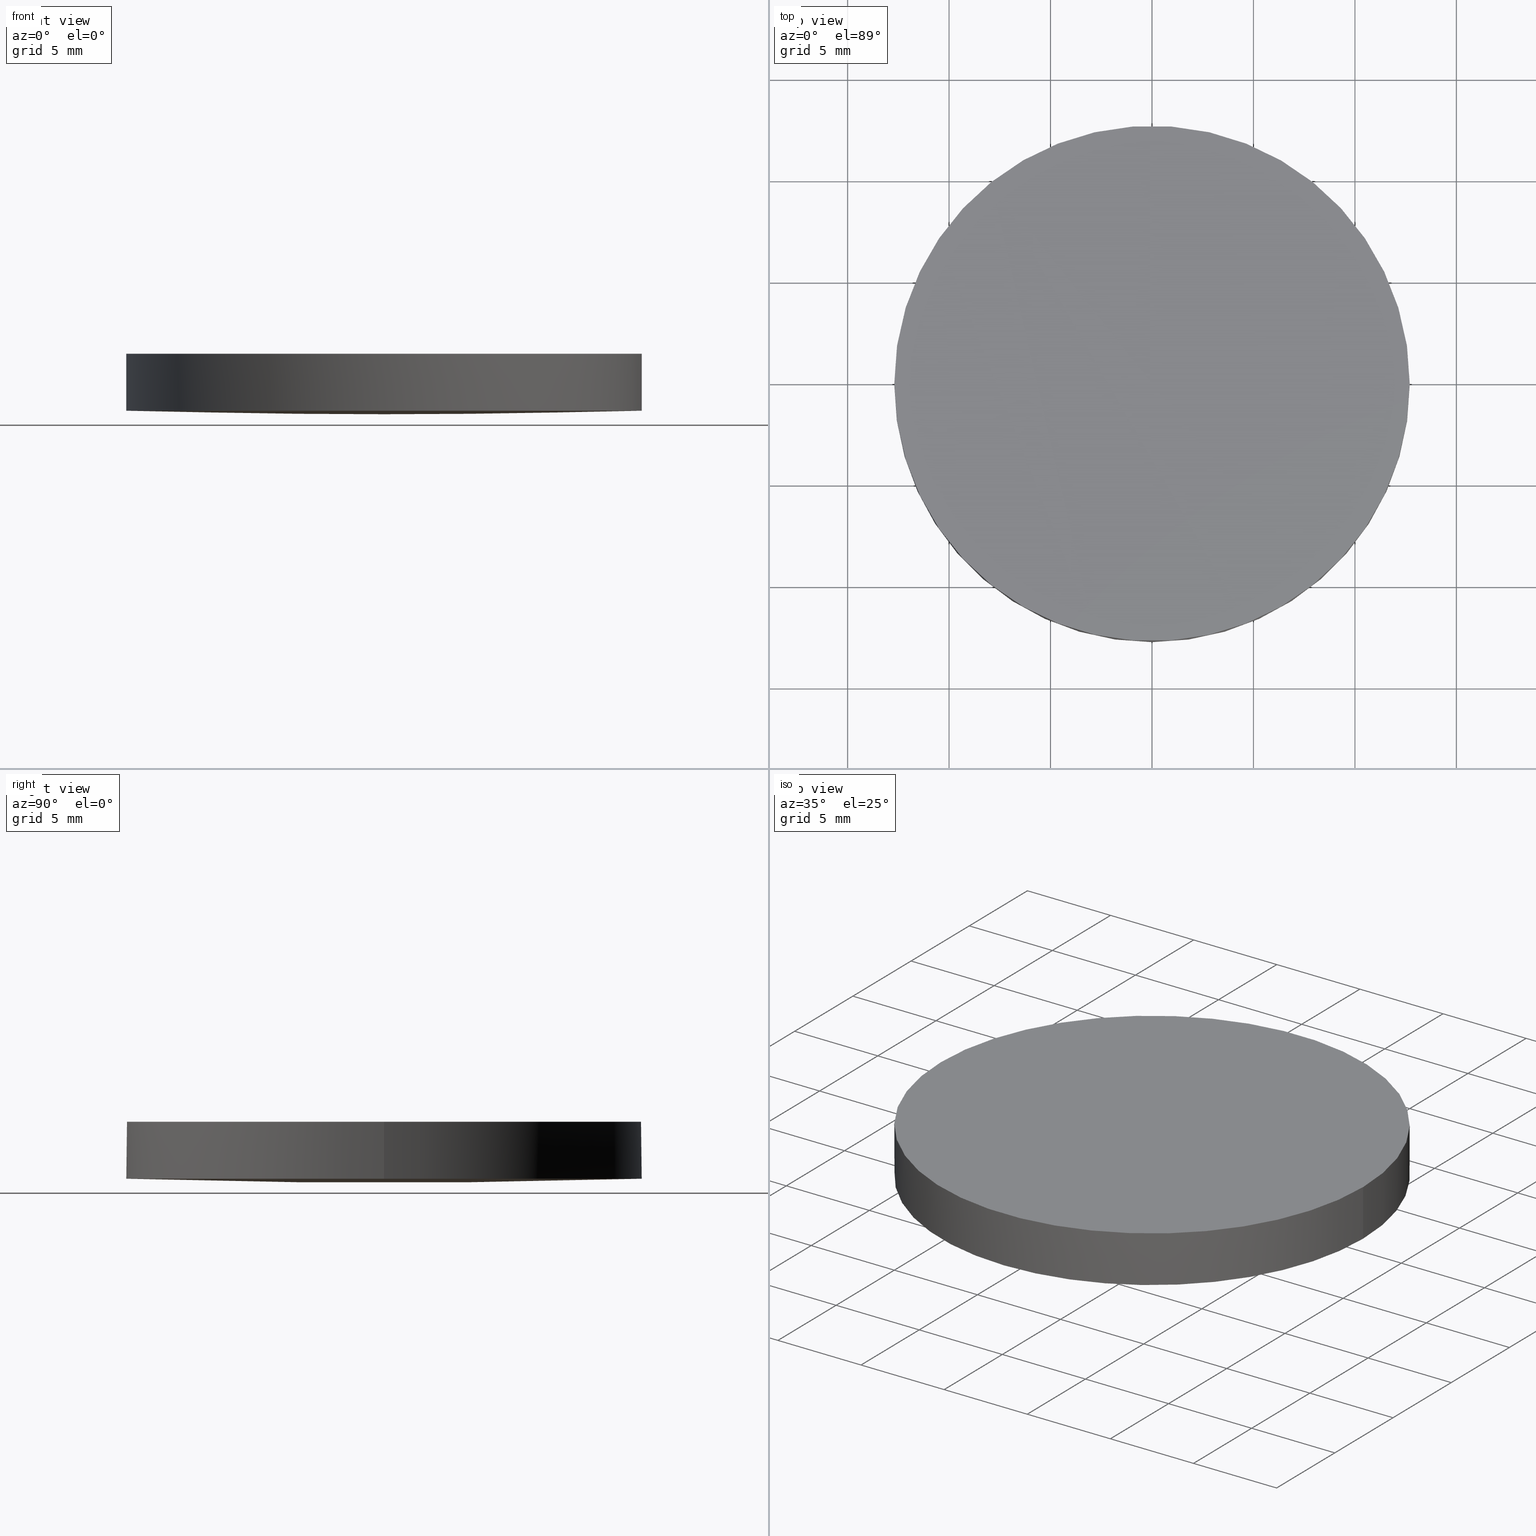
[diagram: canonical four-view strip — front | top / right | iso, engineering-drawing reading convention]
A machine part, canonical four-view strip (front | top / right | iso — engineering-drawing reading convention). The complete STEP part file that produces these views, byte-faithful:
ISO-10303-21;
HEADER;
FILE_DESCRIPTION (( 'STEP AP203' ),
    '1' );
FILE_NAME ('110-0255E BK7 pl-cx 25.4 F800.STEP',
    '2018-12-21T06:46:58',
    ( '' ),
    ( '' ),
    'SwSTEP 2.0',
    'SolidWorks 2017',
    '' );
FILE_SCHEMA (( 'CONFIG_CONTROL_DESIGN' ));
ENDSEC;

DATA;
#1 = CARTESIAN_POINT ( 'NONE',  ( 12.69999999999999900, 2.442490654175340100E-015, 0.1943708192956540000 ) ) ;
#2 = CARTESIAN_POINT ( 'NONE',  ( -12.77821942835072700, 4.285487597691059100, 0.1303658736990920600 ) ) ;
#3 = EDGE_CURVE ( 'NONE', #42, #85, #97, .T. ) ;
#4 = LOCAL_TIME ( 8, 46, 58.00000000000000000, #67 ) ;
#5 = APPROVAL_PERSON_ORGANIZATION ( #25, #24, #35 ) ;
#6 = DIRECTION ( 'NONE',  ( 2.800826601236829100E-016, -1.000000000000000000, 0.0000000000000000000 ) ) ;
#7 = ORIENTED_EDGE ( 'NONE', *, *, #112, .F. ) ;
#8 = CC_DESIGN_APPROVAL ( #135, ( #125 ) ) ;
#9 = CARTESIAN_POINT ( 'NONE',  ( 8.519990901291127000, 4.285487597691064500, -0.0007899738707676747800 ) ) ;
#10 = CARTESIAN_POINT ( 'NONE',  ( 12.69999999999999900, 2.442490654175340100E-015, 0.1943708192956540000 ) ) ;
#11 = LOCAL_TIME ( 8, 46, 58.00000000000000000, #110 ) ;
#12 = ORIENTED_EDGE ( 'NONE', *, *, #184, .T. ) ;
#13 = CC_DESIGN_PERSON_AND_ORGANIZATION_ASSIGNMENT ( #14, #65, ( #125 ) ) ;
#14 = PERSON_AND_ORGANIZATION ( #41, #219 ) ;
#15 = APPROVAL_STATUS ( 'not_yet_approved' ) ;
#16 = PERSON_AND_ORGANIZATION_ROLE ( 'design_owner' ) ;
#17 = EDGE_CURVE ( 'NONE', #80, #227, #201, .T. ) ;
#18 = EDGE_LOOP ( 'NONE', ( #213, #72, #182, #161, #126 ) ) ;
#19 = DIRECTION ( 'NONE',  ( 0.0000000000000000000, 0.0000000000000000000, 1.000000000000000000 ) ) ;
#20 = APPROVAL_PERSON_ORGANIZATION ( #149, #135, #228 ) ;
#21 = AXIS2_PLACEMENT_3D ( 'NONE', #44, #193, #29 ) ;
#22 = LOCAL_TIME ( 8, 46, 58.00000000000000000, #79 ) ;
#23 = EDGE_LOOP ( 'NONE', ( #207, #46, #39, #167, #225 ) ) ;
#24 = APPROVAL ( #194, 'UNSPECIFIED' ) ;
#25 = PERSON_AND_ORGANIZATION ( #41, #219 ) ;
#26 = CARTESIAN_POINT ( 'NONE',  ( 4.257523415242414600, 12.85235154755344000, 0.1990633331476209800 ) ) ;
#27 = CARTESIAN_POINT ( 'NONE',  ( 12.77004763216025500, 12.85235154755343800, 0.3956790587314284500 ) ) ;
#28 = APPROVAL_PERSON_ORGANIZATION ( #156, #230, #229 ) ;
#29 = DIRECTION ( 'NONE',  ( 1.000000000000000000, 0.0000000000000000000, 0.0000000000000000000 ) ) ;
#30 = EDGE_LOOP ( 'NONE', ( #57, #7 ) ) ;
#31 = CARTESIAN_POINT ( 'NONE',  ( 1.561092886320984200E-013, 4.285487597691062700, -0.06637567002445760000 ) ) ;
#32 = PERSON_AND_ORGANIZATION_ROLE ( 'creator' ) ;
#33 = FACE_OUTER_BOUND ( 'NONE', #132, .T. ) ;
#34 = PERSON_AND_ORGANIZATION_ROLE ( 'classification_officer' ) ;
#35 = APPROVAL_ROLE ( '' ) ;
#36 = SECURITY_CLASSIFICATION ( '', '', #47 ) ;
#37 = PERSON_AND_ORGANIZATION ( #41, #219 ) ;
#38 = DIRECTION ( 'NONE',  ( 1.000000000000000000, 0.0000000000000000000, 0.0000000000000000000 ) ) ;
#39 = ORIENTED_EDGE ( 'NONE', *, *, #112, .T. ) ;
#40 = PRODUCT_RELATED_PRODUCT_CATEGORY ( 'detail', '', ( #204 ) ) ;
#41 = PERSON ( 'UNSPECIFIED', 'UNSPECIFIED', 'UNSPECIFIED', ('UNSPECIFIED'), ('UNSPECIFIED'), ('UNSPECIFIED') ) ;
#42 = VERTEX_POINT ( 'NONE', #127 ) ;
#43 = ADVANCED_FACE ( 'NONE', ( #63 ), #84, .T. ) ;
#44 = CARTESIAN_POINT ( 'NONE',  ( 4.996003610813200500E-016, 2.442490654175340100E-015, 0.1943708192956540000 ) ) ;
#45 = DIRECTION ( 'NONE',  ( 0.0000000000000000000, 0.0000000000000000000, 1.000000000000000000 ) ) ;
#46 = ORIENTED_EDGE ( 'NONE', *, *, #107, .T. ) ;
#47 = SECURITY_CLASSIFICATION_LEVEL ( 'unclassified' ) ;
#48 = APPROVAL_DATE_TIME ( #52, #135 ) ;
#49 = CIRCLE ( 'NONE', #186, 12.69999999999999900 ) ;
#50 = CARTESIAN_POINT ( 'NONE',  ( 5.724587470723463400E-014, -12.85235154755348600, 0.1990633331476250000 ) ) ;
#51 = DIRECTION ( 'NONE',  ( 1.000000000000000000, 0.0000000000000000000, -0.0000000000000000000 ) ) ;
#52 = DATE_AND_TIME ( #111, #96 ) ;
#53 = PRODUCT_DEFINITION_SHAPE ( 'NONE', 'NONE',  #143 ) ;
#54 = CARTESIAN_POINT ( 'NONE',  ( -4.257523415242374700, 12.85235154755343600, 0.1990633331476250600 ) ) ;
#55 = CARTESIAN_POINT ( 'NONE',  ( -8.514542283854520800, 12.85235154755343600, 0.2646070866077402900 ) ) ;
#56 = PERSON_AND_ORGANIZATION ( #41, #219 ) ;
#57 = ORIENTED_EDGE ( 'NONE', *, *, #17, .F. ) ;
#58 = CC_DESIGN_APPROVAL ( #24, ( #36 ) ) ;
#59 = ADVANCED_BREP_SHAPE_REPRESENTATION ( '110-0255E BK7 pl-cx 25.4 F800', ( #120, #192 ), #205 ) ;
#60 = CARTESIAN_POINT ( 'NONE',  ( 4.257523415242421700, -12.85235154755348600, 0.1990633331476209800 ) ) ;
#61 = AXIS2_PLACEMENT_3D ( 'NONE', #81, #170, #154 ) ;
#62 = DATE_AND_TIME ( #224, #22 ) ;
#63 = FACE_OUTER_BOUND ( 'NONE', #30, .T. ) ;
#64 = CARTESIAN_POINT ( 'NONE',  ( -12.69999999999999900, 3.997792089092478900E-015, 3.000000000000000000 ) ) ;
#65 = PERSON_AND_ORGANIZATION_ROLE ( 'design_supplier' ) ;
#66 = APPLICATION_CONTEXT ( 'configuration controlled 3d designs of mechanical parts and assemblies' ) ;
#67 = COORDINATED_UNIVERSAL_TIME_OFFSET ( 2, 0, .AHEAD. ) ;
#68 = CC_DESIGN_PERSON_AND_ORGANIZATION_ASSIGNMENT ( #56, #34, ( #36 ) ) ;
#69 = CARTESIAN_POINT ( 'NONE',  ( -12.77004763216053200, -12.85235154755348800, 0.3956790587314462600 ) ) ;
#70 = PERSON_AND_ORGANIZATION ( #41, #219 ) ;
#71 = CARTESIAN_POINT ( 'NONE',  ( -12.69999999999999900, 3.997792089092478900E-015, 0.1943708192956540000 ) ) ;
#72 = ORIENTED_EDGE ( 'NONE', *, *, #121, .F. ) ;
#73 = CARTESIAN_POINT ( 'NONE',  ( 5.551115123125782700E-014, -4.285487597691113300, -0.06637567002445361700 ) ) ;
#74 = CARTESIAN_POINT ( 'NONE',  ( -4.260247885395220800, 4.285487597691060900, -0.06637567002445252100 ) ) ;
#75 = VERTEX_POINT ( 'NONE', #103 ) ;
#76 =( BOUNDED_SURFACE ( )  B_SPLINE_SURFACE ( 3, 3, ( 
 ( #69, #218, #138, #50 ),
 ( #199, #104, #139, #73 ),
 ( #2, #145, #74, #220 ),
 ( #203, #55, #54, #109 ) ),
 .UNSPECIFIED., .F., .F., .F. ) 
 B_SPLINE_SURFACE_WITH_KNOTS ( ( 4, 4 ),
 ( 4, 4 ),
 ( 0.0000000000000000000, 1.000000000000000000 ),
 ( 0.0000000000000000000, 1.000000000000000000 ),
 .UNSPECIFIED. ) 
 GEOMETRIC_REPRESENTATION_ITEM ( )  RATIONAL_B_SPLINE_SURFACE ( (
 ( 1.000000000000000000, 0.9999209952859029500, 0.9999209952859029500, 1.000000000000000000),
 ( 0.9996802195451444100, 0.9996012400952107900, 0.9996012400952107900, 0.9996802195451444100),
 ( 0.9996802195451444100, 0.9996012400952107900, 0.9996012400952107900, 0.9996802195451444100),
 ( 1.000000000000000000, 0.9999209952859029500, 0.9999209952859029500, 1.000000000000000000) ) ) 
 REPRESENTATION_ITEM ( '' )  SURFACE ( )  );
#77 = VERTEX_POINT ( 'NONE', #183 ) ;
#78 = CARTESIAN_POINT ( 'NONE',  ( 12.77821942835044700, 4.285487597691066200, 0.1303658736990742400 ) ) ;
#79 = COORDINATED_UNIVERSAL_TIME_OFFSET ( 2, 0, .AHEAD. ) ;
#80 = VERTEX_POINT ( 'NONE', #232 ) ;
#81 = CARTESIAN_POINT ( 'NONE',  ( 4.996003610813200500E-016, 2.442490654175340100E-015, 0.1943708192956540000 ) ) ;
#82 = CARTESIAN_POINT ( 'NONE',  ( 4.996003610813200500E-016, 2.442490654175340100E-015, 0.1943708192956540000 ) ) ;
#83 = DIRECTION ( 'NONE',  ( 0.0000000000000000000, 0.0000000000000000000, 1.000000000000000000 ) ) ;
#84 = PLANE ( 'NONE',  #129 ) ;
#85 = VERTEX_POINT ( 'NONE', #1 ) ;
#86 = CALENDAR_DATE ( 2018, 21, 12 ) ;
#87 = CYLINDRICAL_SURFACE ( 'NONE', #144, 12.69999999999999900 ) ;
#88 = AXIS2_PLACEMENT_3D ( 'NONE', #116, #169, #151 ) ;
#89 = DIRECTION ( 'NONE',  ( 0.0000000000000000000, 0.0000000000000000000, 1.000000000000000000 ) ) ;
#90 = CIRCLE ( 'NONE', #163, 12.69999999999999900 ) ;
#91 = EDGE_CURVE ( 'NONE', #85, #77, #90, .T. ) ;
#92 = ADVANCED_FACE ( 'NONE', ( #33 ), #76, .T. ) ;
#93 = SHAPE_DEFINITION_REPRESENTATION ( #53, #59 ) ;
#94 = FACE_OUTER_BOUND ( 'NONE', #18, .T. ) ;
#95 = CARTESIAN_POINT ( 'NONE',  ( 4.260247885395269700, -4.285487597691111500, -0.06637567002445765600 ) ) ;
#96 = LOCAL_TIME ( 8, 46, 58.00000000000000000, #152 ) ;
#97 = CIRCLE ( 'NONE', #157, 12.69999999999999900 ) ;
#98 =( NAMED_UNIT ( * ) PLANE_ANGLE_UNIT ( ) SI_UNIT ( $, .RADIAN. ) );
#99 = UNCERTAINTY_MEASURE_WITH_UNIT (LENGTH_MEASURE( 1.000000000000000100E-005 ), #211, 'distance_accuracy_value', 'NONE');
#100 = COORDINATED_UNIVERSAL_TIME_OFFSET ( 2, 0, .AHEAD. ) ;
#101 = APPLICATION_CONTEXT ( 'configuration controlled 3d designs of mechanical parts and assemblies' ) ;
#102 = EDGE_CURVE ( 'NONE', #77, #42, #187, .T. ) ;
#103 = CARTESIAN_POINT ( 'NONE',  ( -12.69999999999999900, 3.997792089092478900E-015, 0.1943708192956540000 ) ) ;
#104 = CARTESIAN_POINT ( 'NONE',  ( -8.519990901291244300, -4.285487597691115100, -0.0007899738707599769500 ) ) ;
#105 = DESIGN_CONTEXT ( 'detailed design', #66, 'design' ) ;
#106 = ORIENTED_EDGE ( 'NONE', *, *, #3, .T. ) ;
#107 = EDGE_CURVE ( 'NONE', #75, #227, #235, .T. ) ;
#108 = DIRECTION ( 'NONE',  ( 1.000000000000000000, 0.0000000000000000000, 0.0000000000000000000 ) ) ;
#109 = CARTESIAN_POINT ( 'NONE',  ( 5.030698080332740600E-014, 12.85235154755343400, 0.1990633331476250000 ) ) ;
#110 = COORDINATED_UNIVERSAL_TIME_OFFSET ( 2, 0, .AHEAD. ) ;
#111 = CALENDAR_DATE ( 2018, 21, 12 ) ;
#112 = EDGE_CURVE ( 'NONE', #227, #80, #147, .T. ) ;
#113 = CALENDAR_DATE ( 2018, 21, 12 ) ;
#114 = ADVANCED_FACE ( 'NONE', ( #141 ), #87, .T. ) ;
#115 =( BOUNDED_SURFACE ( )  B_SPLINE_SURFACE ( 3, 3, ( 
 ( #131, #60, #190, #212 ),
 ( #189, #95, #119, #134 ),
 ( #31, #173, #9, #78 ),
 ( #210, #26, #174, #27 ) ),
 .UNSPECIFIED., .F., .F., .T. ) 
 B_SPLINE_SURFACE_WITH_KNOTS ( ( 4, 4 ),
 ( 4, 4 ),
 ( 0.0000000000000000000, 1.000000000000000000 ),
 ( 0.0000000000000000000, 1.000000000000000000 ),
 .UNSPECIFIED. ) 
 GEOMETRIC_REPRESENTATION_ITEM ( )  RATIONAL_B_SPLINE_SURFACE ( (
 ( 1.000000000000000000, 0.9999209952859029500, 0.9999209952859029500, 1.000000000000000000),
 ( 0.9996802195451444100, 0.9996012400952107900, 0.9996012400952107900, 0.9996802195451444100),
 ( 0.9996802195451444100, 0.9996012400952107900, 0.9996012400952107900, 0.9996802195451444100),
 ( 1.000000000000000000, 0.9999209952859029500, 0.9999209952859029500, 1.000000000000000000) ) ) 
 REPRESENTATION_ITEM ( '' )  SURFACE ( )  );
#116 = CARTESIAN_POINT ( 'NONE',  ( 4.996003610813200500E-016, 2.442490654175340100E-015, 3.000000000000000000 ) ) ;
#117 = DIRECTION ( 'NONE',  ( 1.000000000000000000, 0.0000000000000000000, 0.0000000000000000000 ) ) ;
#118 = ORIENTED_EDGE ( 'NONE', *, *, #91, .T. ) ;
#119 = CARTESIAN_POINT ( 'NONE',  ( 8.519990901291130600, -4.285487597691109800, -0.0007899738707687589900 ) ) ;
#120 = MANIFOLD_SOLID_BREP ( 'Imported1', #153 ) ;
#121 = EDGE_CURVE ( 'NONE', #77, #75, #49, .T. ) ;
#122 = DIRECTION ( 'NONE',  ( 1.000000000000000000, 0.0000000000000000000, 0.0000000000000000000 ) ) ;
#123 = DATE_AND_TIME ( #200, #11 ) ;
#124 = EDGE_LOOP ( 'NONE', ( #118, #172, #106 ) ) ;
#125 = PRODUCT_DEFINITION_FORMATION_WITH_SPECIFIED_SOURCE ( 'ANY', '', #204, .NOT_KNOWN. ) ;
#126 = ORIENTED_EDGE ( 'NONE', *, *, #17, .T. ) ;
#127 = CARTESIAN_POINT ( 'NONE',  ( 1.536894163389856000E-013, 12.69999999999961700, 0.1943708192956423200 ) ) ;
#128 = ORIENTED_EDGE ( 'NONE', *, *, #121, .T. ) ;
#129 = AXIS2_PLACEMENT_3D ( 'NONE', #140, #19, #51 ) ;
#130 = DIRECTION ( 'NONE',  ( -0.0000000000000000000, -0.0000000000000000000, -1.000000000000000000 ) ) ;
#131 = CARTESIAN_POINT ( 'NONE',  ( 1.608450511172748200E-013, -12.85235154755348600, 0.1990633331476199300 ) ) ;
#132 = EDGE_LOOP ( 'NONE', ( #221, #128, #12 ) ) ;
#133 = CARTESIAN_POINT ( 'NONE',  ( 0.0000000000000000000, 0.0000000000000000000, 0.0000000000000000000 ) ) ;
#134 = CARTESIAN_POINT ( 'NONE',  ( 12.77821942835044800, -4.285487597691109800, 0.1303658736990731500 ) ) ;
#135 = APPROVAL ( #15, 'UNSPECIFIED' ) ;
#136 = CIRCLE ( 'NONE', #61, 12.69999999999999900 ) ;
#137 = AXIS2_PLACEMENT_3D ( 'NONE', #233, #178, #108 ) ;
#138 = CARTESIAN_POINT ( 'NONE',  ( -4.257523415242367500, -12.85235154755348900, 0.1990633331476250600 ) ) ;
#139 = CARTESIAN_POINT ( 'NONE',  ( -4.260247885395219000, -4.285487597691113300, -0.06637567002445359000 ) ) ;
#140 = CARTESIAN_POINT ( 'NONE',  ( 0.0000000000000000000, 26.11199999999999800, 3.000000000000000000 ) ) ;
#141 = FACE_OUTER_BOUND ( 'NONE', #23, .T. ) ;
#142 = DIRECTION ( 'NONE',  ( 1.000000000000000000, 1.776356839400250500E-015, 0.0000000000000000000 ) ) ;
#143 = PRODUCT_DEFINITION ( 'UNKNOWN', '', #125, #105 ) ;
#144 = AXIS2_PLACEMENT_3D ( 'NONE', #188, #89, #117 ) ;
#145 = CARTESIAN_POINT ( 'NONE',  ( -8.519990901291246000, 4.285487597691059100, -0.0007899738707589469600 ) ) ;
#146 = LINE ( 'NONE', #10, #206 ) ;
#147 = CIRCLE ( 'NONE', #88, 12.69999999999999900 ) ;
#148 = AXIS2_PLACEMENT_3D ( 'NONE', #150, #208, #6 ) ;
#149 = PERSON_AND_ORGANIZATION ( #41, #219 ) ;
#150 = CARTESIAN_POINT ( 'NONE',  ( 5.684341886080800200E-014, 0.0000000000000000000, 415.0000000000000600 ) ) ;
#151 = DIRECTION ( 'NONE',  ( 1.000000000000000000, 0.0000000000000000000, 0.0000000000000000000 ) ) ;
#152 = COORDINATED_UNIVERSAL_TIME_OFFSET ( 2, 0, .AHEAD. ) ;
#153 = CLOSED_SHELL ( 'NONE', ( #209, #114, #92, #168, #43 ) ) ;
#154 = DIRECTION ( 'NONE',  ( 1.000000000000000000, -8.881784197001252300E-016, 0.0000000000000000000 ) ) ;
#155 =( NAMED_UNIT ( * ) SI_UNIT ( $, .STERADIAN. ) SOLID_ANGLE_UNIT ( ) );
#156 = PERSON_AND_ORGANIZATION ( #41, #219 ) ;
#157 = AXIS2_PLACEMENT_3D ( 'NONE', #162, #164, #142 ) ;
#158 = CC_DESIGN_SECURITY_CLASSIFICATION ( #36, ( #125 ) ) ;
#159 = CARTESIAN_POINT ( 'NONE',  ( 4.996003610813200500E-016, 2.442490654175340100E-015, 0.1943708192956540000 ) ) ;
#160 = APPROVAL_DATE_TIME ( #171, #230 ) ;
#161 = ORIENTED_EDGE ( 'NONE', *, *, #222, .T. ) ;
#162 = CARTESIAN_POINT ( 'NONE',  ( 4.996003610813200500E-016, 2.442490654175340100E-015, 0.1943708192956540000 ) ) ;
#163 = AXIS2_PLACEMENT_3D ( 'NONE', #159, #180, #38 ) ;
#164 = DIRECTION ( 'NONE',  ( -0.0000000000000000000, -0.0000000000000000000, -1.000000000000000000 ) ) ;
#165 = CC_DESIGN_PERSON_AND_ORGANIZATION_ASSIGNMENT ( #37, #176, ( #143 ) ) ;
#166 = LOCAL_TIME ( 8, 46, 58.00000000000000000, #100 ) ;
#167 = ORIENTED_EDGE ( 'NONE', *, *, #222, .F. ) ;
#168 = ADVANCED_FACE ( 'NONE', ( #94 ), #231, .T. ) ;
#169 = DIRECTION ( 'NONE',  ( -0.0000000000000000000, -0.0000000000000000000, -1.000000000000000000 ) ) ;
#170 = DIRECTION ( 'NONE',  ( -0.0000000000000000000, -0.0000000000000000000, -1.000000000000000000 ) ) ;
#171 = DATE_AND_TIME ( #113, #166 ) ;
#172 = ORIENTED_EDGE ( 'NONE', *, *, #102, .T. ) ;
#173 = CARTESIAN_POINT ( 'NONE',  ( 4.260247885395267000, 4.285487597691062700, -0.06637567002445657300 ) ) ;
#174 = CARTESIAN_POINT ( 'NONE',  ( 8.514542283854401800, 12.85235154755344000, 0.2646070866077315200 ) ) ;
#175 = DATE_TIME_ROLE ( 'creation_date' ) ;
#176 = PERSON_AND_ORGANIZATION_ROLE ( 'creator' ) ;
#177 = DATE_AND_TIME ( #86, #4 ) ;
#178 = DIRECTION ( 'NONE',  ( -0.0000000000000000000, -0.0000000000000000000, -1.000000000000000000 ) ) ;
#179 = CC_DESIGN_DATE_AND_TIME_ASSIGNMENT ( #62, #195, ( #36 ) ) ;
#180 = DIRECTION ( 'NONE',  ( -0.0000000000000000000, -0.0000000000000000000, -1.000000000000000000 ) ) ;
#181 = DIRECTION ( 'NONE',  ( 0.0000000000000000000, 0.0000000000000000000, 1.000000000000000000 ) ) ;
#182 = ORIENTED_EDGE ( 'NONE', *, *, #91, .F. ) ;
#183 = CARTESIAN_POINT ( 'NONE',  ( 1.608035159061269200E-013, -12.69999999999961700, 0.1943708192956423200 ) ) ;
#184 = EDGE_CURVE ( 'NONE', #75, #42, #136, .T. ) ;
#185 = APPROVAL_DATE_TIME ( #177, #24 ) ;
#186 = AXIS2_PLACEMENT_3D ( 'NONE', #82, #130, #214 ) ;
#187 = CIRCLE ( 'NONE', #148, 415.0000000000000600 ) ;
#188 = CARTESIAN_POINT ( 'NONE',  ( 4.996003610813200500E-016, 2.442490654175340100E-015, 0.1943708192956540000 ) ) ;
#189 = CARTESIAN_POINT ( 'NONE',  ( 1.585098701646751900E-013, -4.285487597691113300, -0.06637567002445868300 ) ) ;
#190 = CARTESIAN_POINT ( 'NONE',  ( 8.514542283854408900, -12.85235154755348600, 0.2646070866077315200 ) ) ;
#191 = FACE_OUTER_BOUND ( 'NONE', #124, .T. ) ;
#192 = AXIS2_PLACEMENT_3D ( 'NONE', #133, #83, #122 ) ;
#193 = DIRECTION ( 'NONE',  ( 0.0000000000000000000, 0.0000000000000000000, 1.000000000000000000 ) ) ;
#194 = APPROVAL_STATUS ( 'not_yet_approved' ) ;
#195 = DATE_TIME_ROLE ( 'classification_date' ) ;
#196 = CC_DESIGN_PERSON_AND_ORGANIZATION_ASSIGNMENT ( #197, #16, ( #204 ) ) ;
#197 = PERSON_AND_ORGANIZATION ( #41, #219 ) ;
#198 = APPLICATION_PROTOCOL_DEFINITION ( 'international standard', 'config_control_design', 1994, #66 ) ;
#199 = CARTESIAN_POINT ( 'NONE',  ( -12.77821942835072600, -4.285487597691116000, 0.1303658736990910000 ) ) ;
#200 = CALENDAR_DATE ( 2018, 21, 12 ) ;
#201 = CIRCLE ( 'NONE', #137, 12.69999999999999900 ) ;
#202 = CC_DESIGN_APPROVAL ( #230, ( #143 ) ) ;
#203 = CARTESIAN_POINT ( 'NONE',  ( -12.77004763216053900, 12.85235154755343100, 0.3956790587314462600 ) ) ;
#204 = PRODUCT ( '110-0255E BK7 pl-cx 25.4 F800', '110-0255E BK7 pl-cx 25.4 F800', '', ( #216 ) ) ;
#205 =( GEOMETRIC_REPRESENTATION_CONTEXT ( 3 ) GLOBAL_UNCERTAINTY_ASSIGNED_CONTEXT ( ( #99 ) ) GLOBAL_UNIT_ASSIGNED_CONTEXT ( ( #211, #98, #155 ) ) REPRESENTATION_CONTEXT ( 'NONE', 'WORKASPACE' ) );
#206 = VECTOR ( 'NONE', #45, 1000.000000000000000 ) ;
#207 = ORIENTED_EDGE ( 'NONE', *, *, #184, .F. ) ;
#208 = DIRECTION ( 'NONE',  ( 1.000000000000000000, 2.800826601236830100E-016, 2.420484202686870100E-016 ) ) ;
#209 = ADVANCED_FACE ( 'NONE', ( #191 ), #115, .T. ) ;
#210 = CARTESIAN_POINT ( 'NONE',  ( 1.536456094967078300E-013, 12.85235154755343400, 0.1990633331476199300 ) ) ;
#211 =( LENGTH_UNIT ( ) NAMED_UNIT ( * ) SI_UNIT ( .MILLI., .METRE. ) );
#212 = CARTESIAN_POINT ( 'NONE',  ( 12.77004763216026200, -12.85235154755348200, 0.3956790587314284500 ) ) ;
#213 = ORIENTED_EDGE ( 'NONE', *, *, #107, .F. ) ;
#214 = DIRECTION ( 'NONE',  ( 1.000000000000000000, 0.0000000000000000000, 0.0000000000000000000 ) ) ;
#215 = CC_DESIGN_DATE_AND_TIME_ASSIGNMENT ( #123, #175, ( #143 ) ) ;
#216 = MECHANICAL_CONTEXT ( 'NONE', #101, 'mechanical' ) ;
#217 = APPLICATION_PROTOCOL_DEFINITION ( 'international standard', 'config_control_design', 1994, #101 ) ;
#218 = CARTESIAN_POINT ( 'NONE',  ( -8.514542283854513700, -12.85235154755348900, 0.2646070866077402900 ) ) ;
#219 = ORGANIZATION ( 'UNSPECIFIED', 'UNSPECIFIED', '' ) ;
#220 = CARTESIAN_POINT ( 'NONE',  ( 5.377642775528102600E-014, 4.285487597691062700, -0.06637567002445253500 ) ) ;
#221 = ORIENTED_EDGE ( 'NONE', *, *, #102, .F. ) ;
#222 = EDGE_CURVE ( 'NONE', #85, #80, #146, .T. ) ;
#223 = VECTOR ( 'NONE', #181, 1000.000000000000000 ) ;
#224 = CALENDAR_DATE ( 2018, 21, 12 ) ;
#225 = ORIENTED_EDGE ( 'NONE', *, *, #3, .F. ) ;
#226 = APPROVAL_STATUS ( 'not_yet_approved' ) ;
#227 = VERTEX_POINT ( 'NONE', #64 ) ;
#228 = APPROVAL_ROLE ( '' ) ;
#229 = APPROVAL_ROLE ( '' ) ;
#230 = APPROVAL ( #226, 'UNSPECIFIED' ) ;
#231 = CYLINDRICAL_SURFACE ( 'NONE', #21, 12.69999999999999900 ) ;
#232 = CARTESIAN_POINT ( 'NONE',  ( 12.69999999999999900, 2.442490654175340100E-015, 3.000000000000000000 ) ) ;
#233 = CARTESIAN_POINT ( 'NONE',  ( 4.996003610813200500E-016, 2.442490654175340100E-015, 3.000000000000000000 ) ) ;
#234 = CC_DESIGN_PERSON_AND_ORGANIZATION_ASSIGNMENT ( #70, #32, ( #125 ) ) ;
#235 = LINE ( 'NONE', #71, #223 ) ;
ENDSEC;
END-ISO-10303-21;
